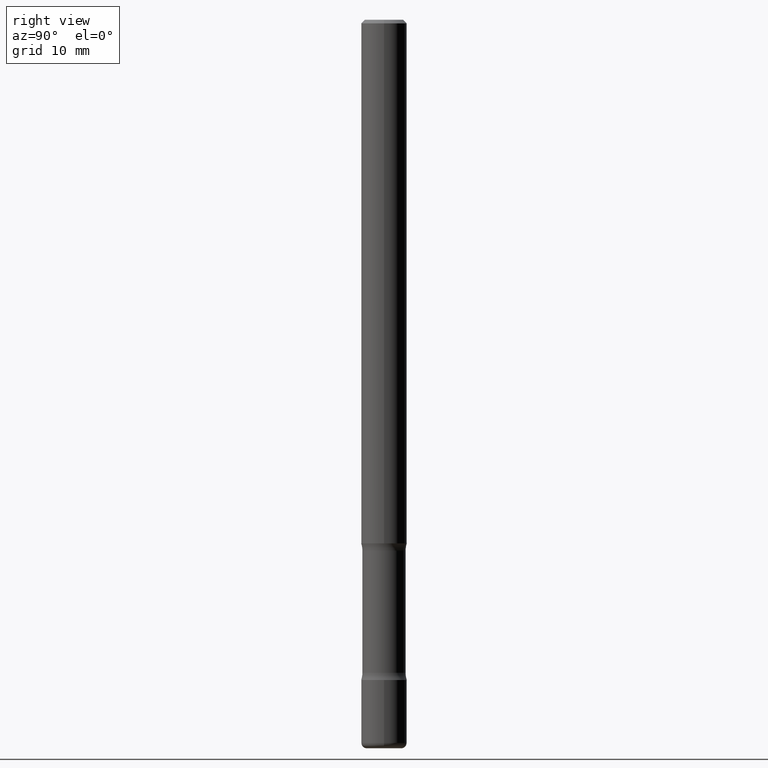
[diagram: clean part render]
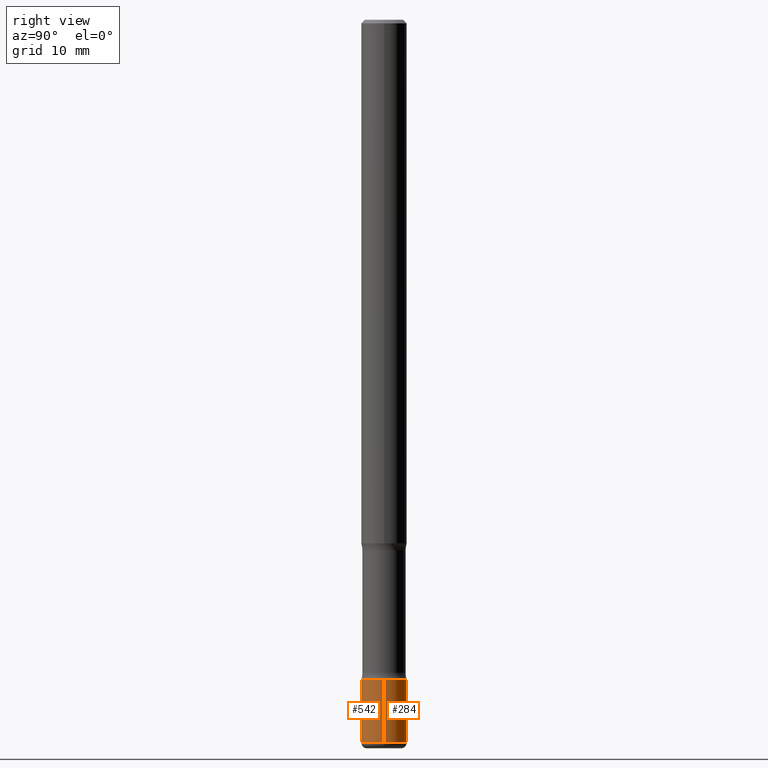
[diagram: same view with one multi-face feature highlighted, each face labeled with its STEP entity id]
A machine part, right view. The highlighted faces form ONE feature: a constant-radius fillet chain: 2 tangent blend faces with common blend radius 3.175 mm. The faces share edges in the B-rep.
Their STEP definitions:
[1] entity #284 (Cylinder):
#9 = ORIENTED_EDGE ( 'NONE', *, *, #169, .F. ) ;
#13 = ORIENTED_EDGE ( 'NONE', *, *, #51, .T. ) ;
#15 = DIRECTION ( 'NONE',  ( -2.445468806185136877E-29, 3.491481338843145188E-15, 1.000000000000000000 ) ) ;
#33 = AXIS2_PLACEMENT_3D ( 'NONE', #476, #310, #152 ) ;
#37 = DIRECTION ( 'NONE',  ( 1.000000000000000000, -6.982962677686273810E-15, 0.000000000000000000 ) ) ;
#51 = EDGE_CURVE ( 'NONE', #358, #359, #274, .T. ) ;
#54 = ORIENTED_EDGE ( 'NONE', *, *, #549, .F. ) ;
#77 = CIRCLE ( 'NONE', #462, 0.1250000000000003608 ) ;
#102 = CIRCLE ( 'NONE', #289, 0.1250000000000007216 ) ;
#111 = VECTOR ( 'NONE', #15, 39.37007874015748143 ) ;
#140 = FACE_OUTER_BOUND ( 'NONE', #286, .T. ) ;
#152 = DIRECTION ( 'NONE',  ( 1.000000000000000000, -6.982962677686265922E-15, 4.876176775795935232E-29 ) ) ;
#154 = CARTESIAN_POINT ( 'NONE',  ( -0.1250000000000005551, 8.881784197001291766E-16, -6.148668862818658852E-30 ) ) ;
#169 = EDGE_CURVE ( 'NONE', #494, #359, #77, .T. ) ;
#191 = DIRECTION ( 'NONE',  ( -2.445468806185136597E-29, 3.491481338843145583E-15, 1.000000000000000000 ) ) ;
#197 = CARTESIAN_POINT ( 'NONE',  ( -0.1250000000000003608, -1.237072196455671739E-14, -3.625000000000000444 ) ) ;
#219 = CYLINDRICAL_SURFACE ( 'NONE', #33, 0.1250000000000005551 ) ;
#228 = CARTESIAN_POINT ( 'NONE',  ( -0.1250000000000007494, -1.297300249550715584E-14, -3.969999999999999307 ) ) ;
#245 = DIRECTION ( 'NONE',  ( -2.445468806185136877E-29, 3.491481338843145188E-15, 1.000000000000000000 ) ) ;
#251 = CARTESIAN_POINT ( 'NONE',  ( 0.1250000000000003608, -1.352949018801719066E-14, -3.625000000000000444 ) ) ;
#269 = CARTESIAN_POINT ( 'NONE',  ( 9.708511160554990630E-29, -1.386118091520728581E-14, -3.969999999999999307 ) ) ;
#274 = LINE ( 'NONE', #154, #111 ) ;
#284 = ADVANCED_FACE ( 'NONE', ( #140 ), #219, .T. ) ;
#286 = EDGE_LOOP ( 'NONE', ( #373, #13, #9, #54 ) ) ;
#289 = AXIS2_PLACEMENT_3D ( 'NONE', #269, #191, #437 ) ;
#294 = EDGE_CURVE ( 'NONE', #401, #358, #102, .T. ) ;
#310 = DIRECTION ( 'NONE',  ( -2.445468806185136597E-29, 3.491481338843145583E-15, 1.000000000000000000 ) ) ;
#316 = CARTESIAN_POINT ( 'NONE',  ( 0.1250000000000007494, -1.473405124991807388E-14, -3.969999999999999307 ) ) ;
#350 = DIRECTION ( 'NONE',  ( -2.445468806185136597E-29, 3.491481338843145583E-15, 1.000000000000000000 ) ) ;
#358 = VERTEX_POINT ( 'NONE', #228 ) ;
#359 = VERTEX_POINT ( 'NONE', #197 ) ;
#369 = LINE ( 'NONE', #372, #471 ) ;
#372 = CARTESIAN_POINT ( 'NONE',  ( 0.1250000000000005551, -8.728703347107870859E-16, 6.095220969744946366E-30 ) ) ;
#373 = ORIENTED_EDGE ( 'NONE', *, *, #294, .T. ) ;
#386 = CARTESIAN_POINT ( 'NONE',  ( 8.864824422421121284E-29, -1.265661985330640417E-14, -3.625000000000000444 ) ) ;
#401 = VERTEX_POINT ( 'NONE', #316 ) ;
#437 = DIRECTION ( 'NONE',  ( 1.000000000000000000, -6.982962677686269077E-15, 0.000000000000000000 ) ) ;
#462 = AXIS2_PLACEMENT_3D ( 'NONE', #386, #350, #37 ) ;
#471 = VECTOR ( 'NONE', #245, 39.37007874015748143 ) ;
#476 = CARTESIAN_POINT ( 'NONE',  ( 0.000000000000000000, 0.000000000000000000, 0.000000000000000000 ) ) ;
#494 = VERTEX_POINT ( 'NONE', #251 ) ;
#549 = EDGE_CURVE ( 'NONE', #401, #494, #369, .T. ) ;
[2] entity #542 (Cylinder):
#15 = DIRECTION ( 'NONE',  ( -2.445468806185136877E-29, 3.491481338843145188E-15, 1.000000000000000000 ) ) ;
#18 = CIRCLE ( 'NONE', #383, 0.1250000000000007216 ) ;
#48 = ORIENTED_EDGE ( 'NONE', *, *, #400, .T. ) ;
#51 = EDGE_CURVE ( 'NONE', #358, #359, #274, .T. ) ;
#69 = AXIS2_PLACEMENT_3D ( 'NONE', #484, #97, #276 ) ;
#97 = DIRECTION ( 'NONE',  ( -2.445468806185136597E-29, 3.491481338843145583E-15, 1.000000000000000000 ) ) ;
#111 = VECTOR ( 'NONE', #15, 39.37007874015748143 ) ;
#154 = CARTESIAN_POINT ( 'NONE',  ( -0.1250000000000005551, 8.881784197001291766E-16, -6.148668862818658852E-30 ) ) ;
#162 = FACE_OUTER_BOUND ( 'NONE', #231, .T. ) ;
#163 = CARTESIAN_POINT ( 'NONE',  ( 0.000000000000000000, 0.000000000000000000, 0.000000000000000000 ) ) ;
#166 = AXIS2_PLACEMENT_3D ( 'NONE', #163, #492, #375 ) ;
#197 = CARTESIAN_POINT ( 'NONE',  ( -0.1250000000000003608, -1.237072196455671739E-14, -3.625000000000000444 ) ) ;
#204 = ORIENTED_EDGE ( 'NONE', *, *, #51, .F. ) ;
#228 = CARTESIAN_POINT ( 'NONE',  ( -0.1250000000000007494, -1.297300249550715584E-14, -3.969999999999999307 ) ) ;
#231 = EDGE_LOOP ( 'NONE', ( #204, #48, #485, #442 ) ) ;
#245 = DIRECTION ( 'NONE',  ( -2.445468806185136877E-29, 3.491481338843145188E-15, 1.000000000000000000 ) ) ;
#251 = CARTESIAN_POINT ( 'NONE',  ( 0.1250000000000003608, -1.352949018801719066E-14, -3.625000000000000444 ) ) ;
#274 = LINE ( 'NONE', #154, #111 ) ;
#276 = DIRECTION ( 'NONE',  ( 1.000000000000000000, -6.982962677686273810E-15, 0.000000000000000000 ) ) ;
#316 = CARTESIAN_POINT ( 'NONE',  ( 0.1250000000000007494, -1.473405124991807388E-14, -3.969999999999999307 ) ) ;
#358 = VERTEX_POINT ( 'NONE', #228 ) ;
#359 = VERTEX_POINT ( 'NONE', #197 ) ;
#369 = LINE ( 'NONE', #372, #471 ) ;
#372 = CARTESIAN_POINT ( 'NONE',  ( 0.1250000000000005551, -8.728703347107870859E-16, 6.095220969744946366E-30 ) ) ;
#375 = DIRECTION ( 'NONE',  ( 1.000000000000000000, -6.982962677686265922E-15, 4.876176775795935232E-29 ) ) ;
#383 = AXIS2_PLACEMENT_3D ( 'NONE', #410, #451, #395 ) ;
#395 = DIRECTION ( 'NONE',  ( 1.000000000000000000, -6.982962677686269077E-15, 0.000000000000000000 ) ) ;
#400 = EDGE_CURVE ( 'NONE', #358, #401, #18, .T. ) ;
#401 = VERTEX_POINT ( 'NONE', #316 ) ;
#404 = CIRCLE ( 'NONE', #69, 0.1250000000000003608 ) ;
#410 = CARTESIAN_POINT ( 'NONE',  ( 9.708511160554990630E-29, -1.386118091520728581E-14, -3.969999999999999307 ) ) ;
#442 = ORIENTED_EDGE ( 'NONE', *, *, #450, .F. ) ;
#450 = EDGE_CURVE ( 'NONE', #359, #494, #404, .T. ) ;
#451 = DIRECTION ( 'NONE',  ( -2.445468806185136597E-29, 3.491481338843145583E-15, 1.000000000000000000 ) ) ;
#471 = VECTOR ( 'NONE', #245, 39.37007874015748143 ) ;
#484 = CARTESIAN_POINT ( 'NONE',  ( 8.864824422421121284E-29, -1.265661985330640417E-14, -3.625000000000000444 ) ) ;
#485 = ORIENTED_EDGE ( 'NONE', *, *, #549, .T. ) ;
#492 = DIRECTION ( 'NONE',  ( -2.445468806185136597E-29, 3.491481338843145583E-15, 1.000000000000000000 ) ) ;
#494 = VERTEX_POINT ( 'NONE', #251 ) ;
#537 = CYLINDRICAL_SURFACE ( 'NONE', #166, 0.1250000000000005551 ) ;
#542 = ADVANCED_FACE ( 'NONE', ( #162 ), #537, .T. ) ;
#549 = EDGE_CURVE ( 'NONE', #401, #494, #369, .T. ) ;